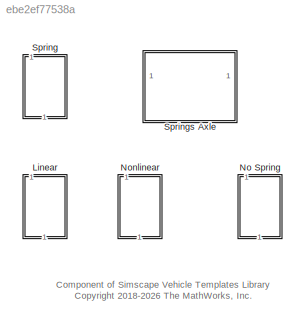
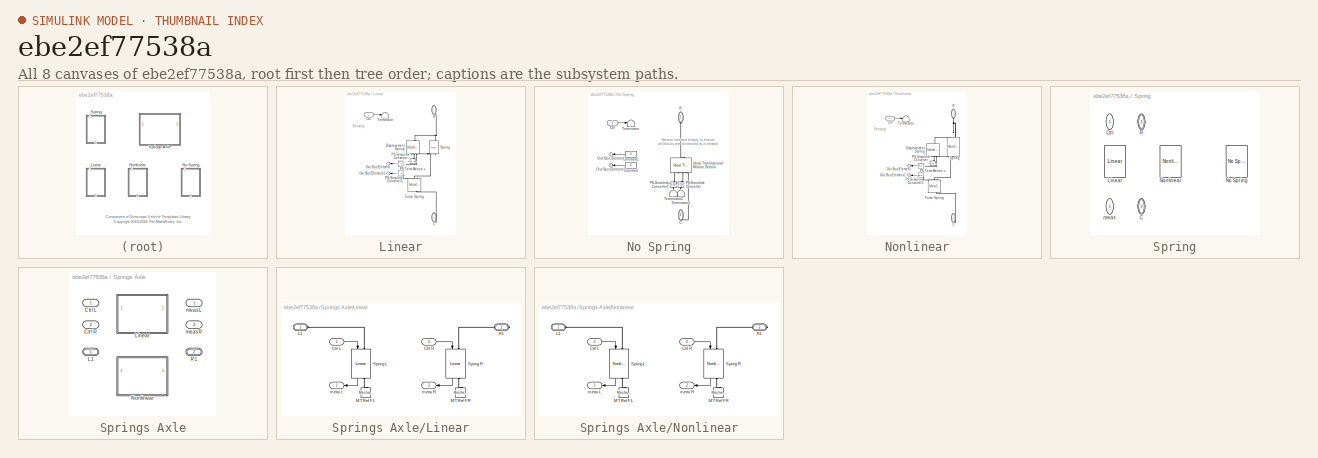
[diagram: thumbnail index - all 8 canvases of the model, root first then tree order]
MODEL slx_ebe2ef77538a
KIND library
CONFIG SolverName = VariableStepAuto
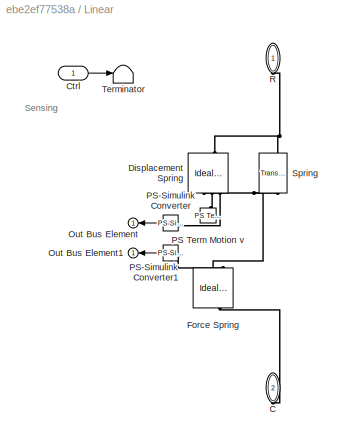
BLOCK [SubSystem] Linear
  NameLocation = right
  VariantControl = Linear
BLOCK [PMIOPort] Linear/C
  NameLocation = right
  Port = 2
  Side = Right
BLOCK [Inport] Linear/Ctrl
BLOCK [Reference] Linear/Displacement Spring  REF=fl_lib/Mechanical/Mechanical Sensors/Ideal Translational
Motion Sensor
  NameLocation = left
  SourceBlock = fl_lib/Mechanical/Mechanical Sensors/Ideal Translational\nMotion Sensor
  SourceType = Ideal Translational\nMotion Sensor
BLOCK [Reference] Linear/Force Spring  REF=fl_lib/Mechanical/Mechanical Sensors/Ideal Force Sensor
  NameLocation = left
  SourceBlock = fl_lib/Mechanical/Mechanical Sensors/Ideal Force Sensor
  SourceType = Ideal Force Sensor
BLOCK [Outport] Linear/Out Bus Element
  NameLocation = top
  VectorParamsAs1DForOutWhenUnconnected = off
BLOCK [Outport] Linear/Out Bus Element1
  NameLocation = top
  VectorParamsAs1DForOutWhenUnconnected = off
BLOCK [Reference] Linear/PS Term Motion v  REF=fl_lib/Physical Signals/Sinks/PS Terminator
  NameLocation = right
  SourceBlock = fl_lib/Physical Signals/Sinks/PS Terminator
  SourceType = PS Terminator
BLOCK [Reference] Linear/PS-Simulink Converter  REF=nesl_utility/PS-Simulink
Converter
  NameLocation = top
  SourceBlock = nesl_utility/PS-Simulink\nConverter
  SourceType = PS-Simulink\nConverter
BLOCK [Reference] Linear/PS-Simulink Converter1  REF=nesl_utility/PS-Simulink
Converter
  NameLocation = top
  SourceBlock = nesl_utility/PS-Simulink\nConverter
  SourceType = PS-Simulink\nConverter
BLOCK [PMIOPort] Linear/R
  NameLocation = right
  Side = Left
BLOCK [Reference] Linear/Spring  REF=fl_lib/Mechanical/Translational
Elements/Translational Spring
  NameLocation = right
  SourceBlock = fl_lib/Mechanical/Translational\nElements/Translational Spring
  SourceType = Translational Spring
BLOCK [Terminator] Linear/Terminator
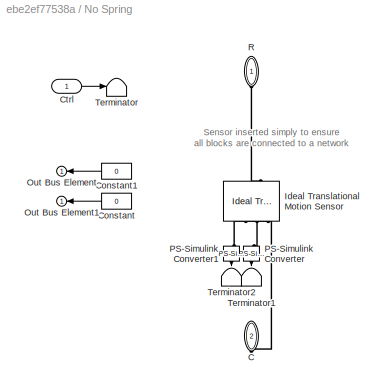
BLOCK [SubSystem] No Spring
  NameLocation = right
  VariantControl = Linear
BLOCK [PMIOPort] No Spring/C
  NameLocation = right
  Port = 2
  Side = Right
BLOCK [Constant] No Spring/Constant
  Value = 0
BLOCK [Constant] No Spring/Constant1
  Value = 0
BLOCK [Inport] No Spring/Ctrl
BLOCK [Reference] No Spring/Ideal Translational Motion Sensor  REF=fl_lib/Mechanical/Mechanical Sensors/Ideal Translational
Motion Sensor
  NameLocation = left
  SourceBlock = fl_lib/Mechanical/Mechanical Sensors/Ideal Translational\nMotion Sensor
  SourceType = Ideal Translational\nMotion Sensor
BLOCK [Outport] No Spring/Out Bus Element
  NameLocation = top
  VectorParamsAs1DForOutWhenUnconnected = off
BLOCK [Outport] No Spring/Out Bus Element1
  NameLocation = top
  VectorParamsAs1DForOutWhenUnconnected = off
BLOCK [Reference] No Spring/PS-Simulink Converter  REF=nesl_utility/PS-Simulink
Converter
  NameLocation = left
  SourceBlock = nesl_utility/PS-Simulink\nConverter
  SourceType = PS-Simulink\nConverter
BLOCK [Reference] No Spring/PS-Simulink Converter1  REF=nesl_utility/PS-Simulink
Converter
  NameLocation = left
  SourceBlock = nesl_utility/PS-Simulink\nConverter
  SourceType = PS-Simulink\nConverter
BLOCK [PMIOPort] No Spring/R
  NameLocation = right
  Side = Left
BLOCK [Terminator] No Spring/Terminator
BLOCK [Terminator] No Spring/Terminator1
  NameLocation = left
BLOCK [Terminator] No Spring/Terminator2
  NameLocation = left
BLOCK [SubSystem] Nonlinear
  NameLocation = right
  VariantControl = Nonlinear
BLOCK [PMIOPort] Nonlinear/C
  NameLocation = right
  Port = 2
  Side = Right
BLOCK [Inport] Nonlinear/Ctrl
BLOCK [Reference] Nonlinear/Displacement Spring  REF=fl_lib/Mechanical/Mechanical Sensors/Ideal Translational
Motion Sensor
  NameLocation = left
  SourceBlock = fl_lib/Mechanical/Mechanical Sensors/Ideal Translational\nMotion Sensor
  SourceType = Ideal Translational\nMotion Sensor
BLOCK [Reference] Nonlinear/Force Spring  REF=fl_lib/Mechanical/Mechanical Sensors/Ideal Force Sensor
  NameLocation = left
  SourceBlock = fl_lib/Mechanical/Mechanical Sensors/Ideal Force Sensor
  SourceType = Ideal Force Sensor
BLOCK [Outport] Nonlinear/Out Bus Element
  NameLocation = top
  VectorParamsAs1DForOutWhenUnconnected = off
BLOCK [Outport] Nonlinear/Out Bus Element1
  NameLocation = top
  VectorParamsAs1DForOutWhenUnconnected = off
BLOCK [Reference] Nonlinear/PS Term Motion v  REF=fl_lib/Physical Signals/Sinks/PS Terminator
  NameLocation = right
  SourceBlock = fl_lib/Physical Signals/Sinks/PS Terminator
  SourceType = PS Terminator
BLOCK [Reference] Nonlinear/PS-Simulink Converter  REF=nesl_utility/PS-Simulink
Converter
  NameLocation = top
  SourceBlock = nesl_utility/PS-Simulink\nConverter
  SourceType = PS-Simulink\nConverter
BLOCK [Reference] Nonlinear/PS-Simulink Converter1  REF=nesl_utility/PS-Simulink
Converter
  NameLocation = top
  SourceBlock = nesl_utility/PS-Simulink\nConverter
  SourceType = PS-Simulink\nConverter
BLOCK [PMIOPort] Nonlinear/R
  NameLocation = right
  Side = Left
BLOCK [Reference] Nonlinear/Spring  REF=sdl_lib/Couplings & Drives/Springs & Dampers/Nonlinear
Translational Spring
  NameLocation = right
  SourceBlock = sdl_lib/Couplings & Drives/Springs & Dampers/Nonlinear\nTranslational Spring
  SourceType = Nonlinear\nTranslational Spring
BLOCK [Terminator] Nonlinear/Terminator
BLOCK [SubSystem] Spring
  AttributesFormatString = %<ActiveVariant>
  LabelModeActiveChoice = Linear
  NameLocation = right
  Variant = on
  VariantControl = Variant1
  VariantControlMode = label
BLOCK [PMIOPort] Spring/ C
  NameLocation = left
  Port = 2
  Side = Right
BLOCK [PMIOPort] Spring/ R
  NameLocation = left
  Side = Left
BLOCK [Outport] Spring/ meas
  NameLocation = left
  VectorParamsAs1DForOutWhenUnconnected = off
BLOCK [Inport] Spring/Ctrl 
  NameLocation = left
BLOCK [Reference] Spring/Linear  REF=$bdroot/Linear
  NameLocation = right
  SourceBlock = $bdroot/Linear
  SourceType = Linear Spring
BLOCK [Reference] Spring/No Spring  REF=$bdroot/No Spring
  NameLocation = right
  SourceBlock = $bdroot/No Spring
  SourceType = No Spring
BLOCK [Reference] Spring/Nonlinear  REF=$bdroot/Nonlinear
  NameLocation = right
  SourceBlock = $bdroot/Nonlinear
  SourceType = Nonlinear Spring
BLOCK [SubSystem] Springs Axle
  AttributesFormatString = %<ActiveVariant>
  LabelModeActiveChoice = Linear
  Variant = on
  VariantControl = Variant1
  VariantControlMode = label
BLOCK [PMIOPort] Springs Axle/ L1
  Side = Left
BLOCK [Outport] Springs Axle/ meas L
  VectorParamsAs1DForOutWhenUnconnected = off
BLOCK [Outport] Springs Axle/ meas R
  Port = 2
  VectorParamsAs1DForOutWhenUnconnected = off
BLOCK [Inport] Springs Axle/Ctrl L 
BLOCK [Inport] Springs Axle/Ctrl R 
  Port = 2
BLOCK [SubSystem] Springs Axle/Linear
  VariantControl = Linear
BLOCK [PMIOPort] Springs Axle/Linear/ L1
  Side = Left
BLOCK [Inport] Springs Axle/Linear/Ctrl L
BLOCK [Inport] Springs Axle/Linear/Ctrl R
  Port = 2
BLOCK [Reference] Springs Axle/Linear/MTRef FL  REF=fl_lib/Mechanical/Translational
Elements/Mechanical
Translational
Reference
  NameLocation = right
  SourceBlock = fl_lib/Mechanical/Translational\nElements/Mechanical\nTranslational\nReference
  SourceType = Mechanical\nTranslational\nReference
BLOCK [Reference] Springs Axle/Linear/MTRef FR  REF=fl_lib/Mechanical/Translational
Elements/Mechanical
Translational
Reference
  NameLocation = left
  SourceBlock = fl_lib/Mechanical/Translational\nElements/Mechanical\nTranslational\nReference
  SourceType = Mechanical\nTranslational\nReference
BLOCK [PMIOPort] Springs Axle/Linear/R1
  Port = 2
  Side = Right
BLOCK [Reference] Springs Axle/Linear/Spring L  REF=$bdroot/Linear
  NameLocation = right
  SourceBlock = $bdroot/Linear
  SourceType = Linear Spring
BLOCK [Reference] Springs Axle/Linear/Spring R  REF=$bdroot/Linear
  NameLocation = right
  SourceBlock = $bdroot/Linear
  SourceType = Linear Spring
BLOCK [Outport] Springs Axle/Linear/meas L
  VectorParamsAs1DForOutWhenUnconnected = off
BLOCK [Outport] Springs Axle/Linear/meas R
  Port = 2
  VectorParamsAs1DForOutWhenUnconnected = off
BLOCK [SubSystem] Springs Axle/Nonlinear
  VariantControl = Nonlinear
BLOCK [PMIOPort] Springs Axle/Nonlinear/ L1
  Side = Left
BLOCK [Inport] Springs Axle/Nonlinear/Ctrl L
BLOCK [Inport] Springs Axle/Nonlinear/Ctrl R
  Port = 2
BLOCK [Reference] Springs Axle/Nonlinear/MTRef FL  REF=fl_lib/Mechanical/Translational
Elements/Mechanical
Translational
Reference
  NameLocation = right
  SourceBlock = fl_lib/Mechanical/Translational\nElements/Mechanical\nTranslational\nReference
  SourceType = Mechanical\nTranslational\nReference
BLOCK [Reference] Springs Axle/Nonlinear/MTRef FR  REF=fl_lib/Mechanical/Translational
Elements/Mechanical
Translational
Reference
  NameLocation = left
  SourceBlock = fl_lib/Mechanical/Translational\nElements/Mechanical\nTranslational\nReference
  SourceType = Mechanical\nTranslational\nReference
BLOCK [PMIOPort] Springs Axle/Nonlinear/R1
  Port = 2
  Side = Right
BLOCK [Reference] Springs Axle/Nonlinear/Spring L  REF=$bdroot/Nonlinear
  NameLocation = right
  SourceBlock = $bdroot/Nonlinear
  SourceType = Nonlinear Spring
BLOCK [Reference] Springs Axle/Nonlinear/Spring R  REF=$bdroot/Nonlinear
  NameLocation = right
  SourceBlock = $bdroot/Nonlinear
  SourceType = Nonlinear Spring
BLOCK [Outport] Springs Axle/Nonlinear/meas L
  VectorParamsAs1DForOutWhenUnconnected = off
BLOCK [Outport] Springs Axle/Nonlinear/meas R
  Port = 2
  VectorParamsAs1DForOutWhenUnconnected = off
BLOCK [PMIOPort] Springs Axle/R1
  Port = 2
  Side = Right
ANNOTATION (root): Component of Simscape Vehicle Templates Library <copyright redacted>
ANNOTATION Linear: Sensing
ANNOTATION No Spring: Sensor inserted simply to ensure all blocks are connected to a network
ANNOTATION Nonlinear: Sensing
LINE Linear/Ctrl:1 -> Linear/Terminator:1
LINE Linear/PS-Simulink Converter1:1 -> Linear/Out Bus Element1:1
LINE Linear/PS-Simulink Converter:1 -> Linear/Out Bus Element:1
LINE No Spring/Constant1:1 -> No Spring/Out Bus Element:1
LINE No Spring/Constant:1 -> No Spring/Out Bus Element1:1
LINE No Spring/Ctrl:1 -> No Spring/Terminator:1
LINE No Spring/PS-Simulink Converter1:1 -> No Spring/Terminator2:1
LINE No Spring/PS-Simulink Converter:1 -> No Spring/Terminator1:1
LINE Nonlinear/Ctrl:1 -> Nonlinear/Terminator:1
LINE Nonlinear/PS-Simulink Converter1:1 -> Nonlinear/Out Bus Element1:1
LINE Nonlinear/PS-Simulink Converter:1 -> Nonlinear/Out Bus Element:1
PLINE Linear/C:RConn1 -- Linear/Force Spring:LConn1
PNET net1: Linear/Displacement Spring:LConn1 -- Linear/R:RConn1 -- Linear/Spring:LConn1
PNET net2: Linear/Displacement Spring:RConn1 -- Linear/Force Spring:RConn1 -- Linear/Spring:RConn1
PLINE Linear/Displacement Spring:RConn2 -- Linear/PS Term Motion v:LConn1
PLINE Linear/Displacement Spring:RConn3 -- Linear/PS-Simulink Converter:LConn1
PLINE Linear/Force Spring:RConn2 -- Linear/PS-Simulink Converter1:LConn1
PLINE No Spring/C:RConn1 -- No Spring/Ideal Translational Motion Sensor:RConn1
PLINE No Spring/Ideal Translational Motion Sensor:LConn1 -- No Spring/R:RConn1
PLINE No Spring/Ideal Translational Motion Sensor:RConn2 -- No Spring/PS-Simulink Converter:LConn1
PLINE No Spring/Ideal Translational Motion Sensor:RConn3 -- No Spring/PS-Simulink Converter1:LConn1
PLINE Nonlinear/C:RConn1 -- Nonlinear/Force Spring:LConn1
PNET net3: Nonlinear/Displacement Spring:LConn1 -- Nonlinear/R:RConn1 -- Nonlinear/Spring:LConn1
PNET net4: Nonlinear/Displacement Spring:RConn1 -- Nonlinear/Force Spring:RConn1 -- Nonlinear/Spring:RConn1
PLINE Nonlinear/Displacement Spring:RConn2 -- Nonlinear/PS Term Motion v:LConn1
PLINE Nonlinear/Displacement Spring:RConn3 -- Nonlinear/PS-Simulink Converter:LConn1
PLINE Nonlinear/Force Spring:RConn2 -- Nonlinear/PS-Simulink Converter1:LConn1
note: PNET lines group multi-terminal physical nets as a canonical sorted terminal list (undirected conserving connections); 2-terminal nets keep the pairwise PLINE form
